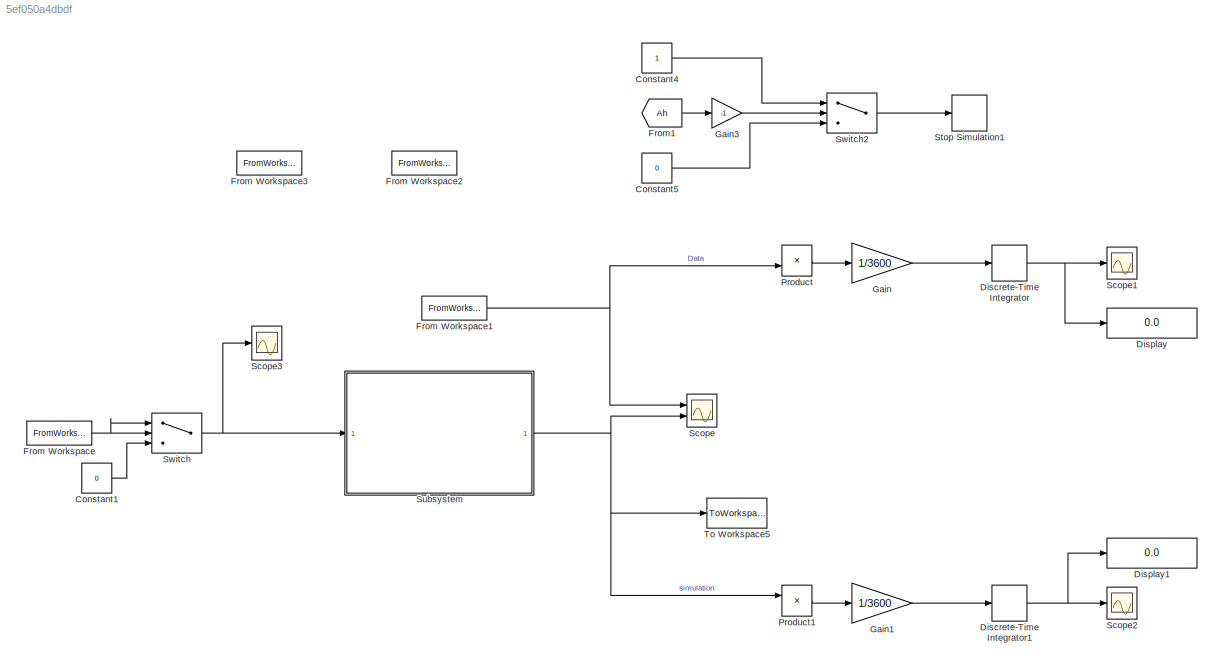
MODEL slx_5ef050a4dbdf
KIND model
CONFIG AbsTol = auto
CONFIG EnableMultiTasking = off
CONFIG FixedStep = 0.01
CONFIG MaxStep = auto
CONFIG MinStep = auto
CONFIG RelTol = 1e-3
CONFIG SampleTimeConstraint = Unconstrained
CONFIG Solver = FixedStepDiscrete
CONFIG SolverName = FixedStepDiscrete
CONFIG StartTime = 0.0
CONFIG StopTime = inf
BLOCK [Constant] Constant1
  SampleTime = -1
  Value = 0
BLOCK [Constant] Constant4
  SampleTime = -1
BLOCK [Constant] Constant5
  SampleTime = -1
  Value = 0
BLOCK [DiscreteIntegrator] Discrete-Time Integrator
  Commented = on
  ICPrevOutput = DiscIntNeverNeededParam
  ICPrevScaledInput = DiscIntNeverNeededParam
  InitialConditionSetting = Auto
  Ports = [1, 1]
  SampleTime = -1
BLOCK [DiscreteIntegrator] Discrete-Time Integrator1
  Commented = on
  ICPrevOutput = DiscIntNeverNeededParam
  ICPrevScaledInput = DiscIntNeverNeededParam
  InitialConditionSetting = Auto
  Ports = [1, 1]
  SampleTime = -1
BLOCK [Display] Display
  Commented = on
  Decimation = 1
  Ports = [1]
BLOCK [Display] Display1
  Commented = on
  Decimation = 1
  Ports = [1]
BLOCK [FromWorkspace] From Workspace
  SampleTime = 0.01
  VariableName = currentdata
  ZeroCross = on
BLOCK [FromWorkspace] From Workspace1
  Commented = on
  SampleTime = 0.001
  VariableName = voltagedata
  ZeroCross = on
BLOCK [FromWorkspace] From Workspace2
  Commented = on
  Interpolate = off
  OutputAfterFinalValue = Cyclic repetition
  SampleTime = 0.001
  VariableName = Vbat
BLOCK [FromWorkspace] From Workspace3
  Commented = on
  Interpolate = off
  OutputAfterFinalValue = Cyclic repetition
  SampleTime = 0.001
  VariableName = Ibat
BLOCK [From] From1
  GotoTag = Ah
  TagVisibility = global
BLOCK [Gain] Gain
  Commented = on
  Gain = 1/3600
  OutDataTypeStr = Inherit: Inherit via internal rule
  ParamDataTypeStr = Inherit: Inherit via internal rule
  SaturateOnIntegerOverflow = off
BLOCK [Gain] Gain1
  Commented = on
  Gain = 1/3600
  OutDataTypeStr = Inherit: Inherit via internal rule
  ParamDataTypeStr = Inherit: Inherit via internal rule
  SaturateOnIntegerOverflow = off
BLOCK [Gain] Gain3
  Gain = -1
  OutDataTypeStr = Inherit: Inherit via internal rule
  ParamDataTypeStr = Inherit: Inherit via internal rule
  SaturateOnIntegerOverflow = off
BLOCK [Product] Product
  Commented = on
  InputSameDT = off
  OutDataTypeStr = Inherit: Inherit via internal rule
  Ports = [2, 1]
  RndMeth = Floor
  SaturateOnIntegerOverflow = off
BLOCK [Product] Product1
  Commented = on
  InputSameDT = off
  OutDataTypeStr = Inherit: Inherit via internal rule
  Ports = [2, 1]
  RndMeth = Floor
  SaturateOnIntegerOverflow = off
BLOCK [Scope] Scope
  Floating = off
  NumInputPorts = 2
  Ports = [2]
  ScopeSpecificationString = Simulink.scopes.TimeScopeBlockCfg('CurrentConfiguration', extmgr.ConfigurationSet(extmgr.Configuration('Core','General UI',true),extmgr.Configuration('Core','Source UI',true),extmgr.Configuration('Sources','WiredSimulink',true),extmgr.Configuration('Visuals','Time Domain',true,'SerializedDisplays',{struct('MinYLimReal','-0.51358','MaxYLimReal','4.62226','YLabelReal','','MinYLimMag','0.00000','MaxY...<+1408ch>
BLOCK [Scope] Scope1
  Commented = on
  Floating = off
  NumInputPorts = 1
  Ports = [1]
  ScopeSpecificationString = Simulink.scopes.TimeScopeBlockCfg('CurrentConfiguration', extmgr.ConfigurationSet(extmgr.Configuration('Core','General UI',true),extmgr.Configuration('Core','Source UI',true),extmgr.Configuration('Sources','WiredSimulink',true,'DataLoggingVariableName','ScopeData1'),extmgr.Configuration('Visuals','Time Domain',true,'SerializedDisplays',{struct('MinYLimReal','26.58272','MaxYLimReal','26.76913','YLa...<+1462ch>
BLOCK [Scope] Scope2
  Commented = on
  Floating = off
  NumInputPorts = 1
  Ports = [1]
  ScopeSpecificationString = Simulink.scopes.TimeScopeBlockCfg('CurrentConfiguration', extmgr.ConfigurationSet(extmgr.Configuration('Core','General UI',true),extmgr.Configuration('Core','Source UI',true),extmgr.Configuration('Sources','WiredSimulink',true,'DataLoggingVariableName','ScopeData1'),extmgr.Configuration('Visuals','Time Domain',true,'SerializedDisplays',{struct('MinYLimReal','-3.34834','MaxYLimReal','30.13504','YLa...<+1461ch>
BLOCK [Scope] Scope3
  Floating = off
  NumInputPorts = 1
  Ports = [1]
  ScopeSpecificationString = Simulink.scopes.TimeScopeBlockCfg('CurrentConfiguration', extmgr.ConfigurationSet(extmgr.Configuration('Core','General UI',true),extmgr.Configuration('Core','Source UI',true),extmgr.Configuration('Sources','WiredSimulink',true,'DataLoggingVariableName','ScopeData1'),extmgr.Configuration('Visuals','Time Domain',true,'SerializedDisplays',{struct('MinYLimReal','-1.00000','MaxYLimReal','1.00000','YLab...<+1436ch>
BLOCK [Stop] Stop Simulation1
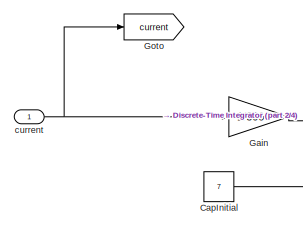
[diagram: Subsystem - part 1/4, top left region]
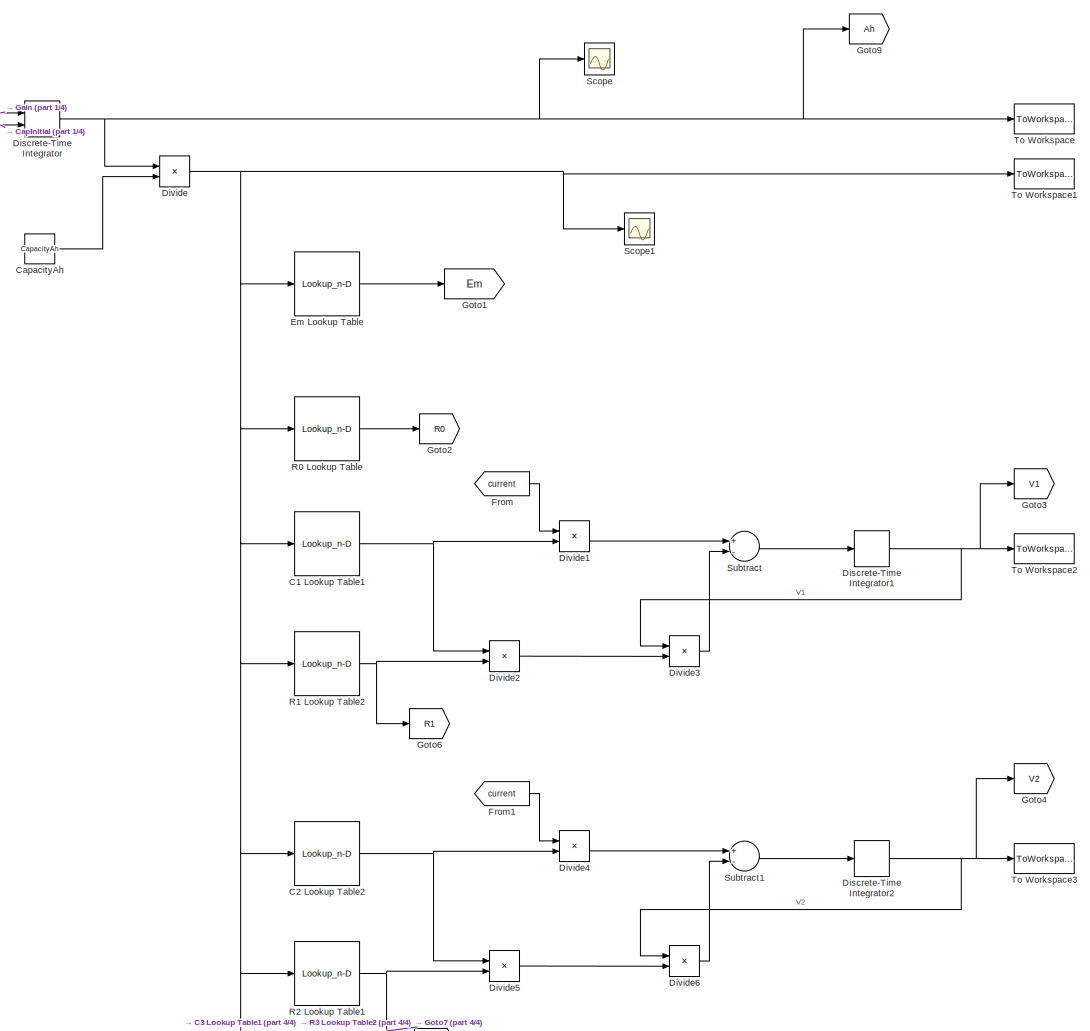
[diagram: Subsystem - part 2/4, middle left region]
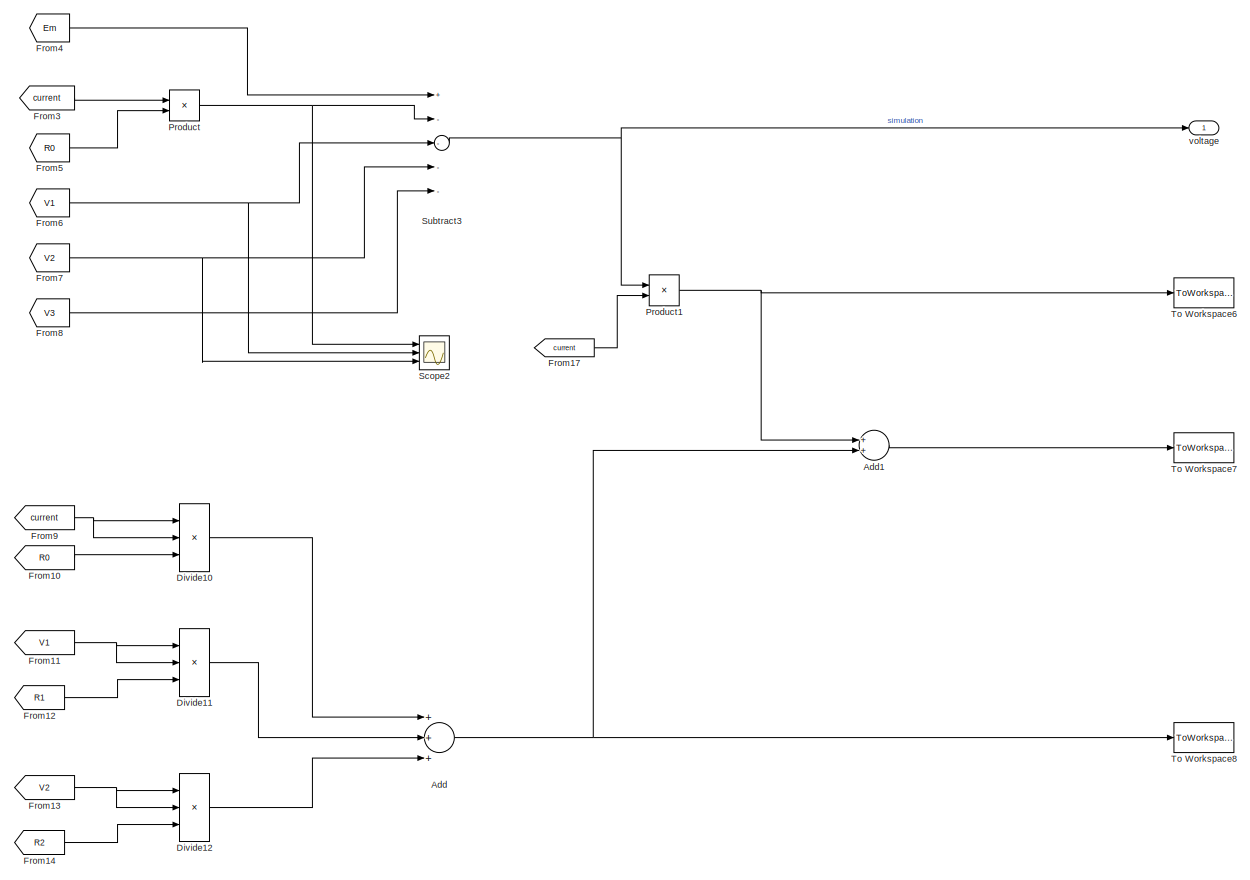
[diagram: Subsystem - part 3/4, middle right region]
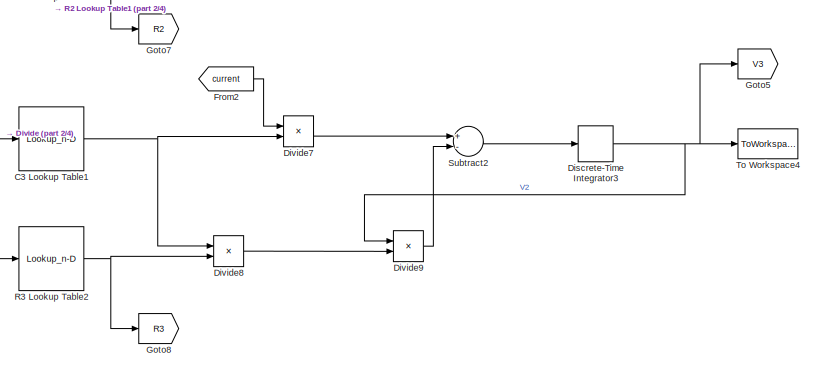
[diagram: Subsystem - part 4/4, bottom center region]
BLOCK [SubSystem] Subsystem
  Ports = [1, 1]
  RequestExecContextInheritance = off
BLOCK [Sum] Subsystem/Add
  InputSameDT = off
  Inputs = +++
  OutDataTypeStr = Inherit: Inherit via internal rule
  Ports = [3, 1]
  SaturateOnIntegerOverflow = off
BLOCK [Sum] Subsystem/Add1
  InputSameDT = off
  OutDataTypeStr = Inherit: Inherit via internal rule
  Ports = [2, 1]
  SaturateOnIntegerOverflow = off
BLOCK [Lookup_n-D] Subsystem/C1 Lookup Table1
  BreakpointsForDimension1 = SOC_LUT
  InternalRulePriority = Speed
  NumberOfTableDimensions = 1
  Ports = [1, 1]
  RndMeth = Simplest
  Table = C1Prime(1,:)
BLOCK [Lookup_n-D] Subsystem/C2 Lookup Table2
  BreakpointsForDimension1 = SOC_LUT
  InternalRulePriority = Speed
  NumberOfTableDimensions = 1
  Ports = [1, 1]
  RndMeth = Simplest
  Table = C2Prime(1,:)
BLOCK [Lookup_n-D] Subsystem/C3 Lookup Table1
  BreakpointsForDimension1 = SOC_LUT
  InternalRulePriority = Speed
  NumberOfTableDimensions = 1
  Ports = [1, 1]
  RndMeth = Simplest
  Table = C3Prime(1,:)
BLOCK [Constant] Subsystem/CapInitial
  SampleTime = -1
  Value = 7
BLOCK [Constant] Subsystem/CapacityAh
  SampleTime = -1
  Value = CapacityAh
BLOCK [DiscreteIntegrator] Subsystem/Discrete-Time Integrator
  ICPrevOutput = DiscIntNeverNeededParam
  ICPrevScaledInput = DiscIntNeverNeededParam
  InitialConditionSetting = Auto
  InitialConditionSource = external
  Ports = [2, 1]
  SampleTime = -1
BLOCK [DiscreteIntegrator] Subsystem/Discrete-Time Integrator1
  ICPrevOutput = DiscIntNeverNeededParam
  ICPrevScaledInput = DiscIntNeverNeededParam
  InitialConditionSetting = Auto
  Ports = [1, 1]
  SampleTime = -1
BLOCK [DiscreteIntegrator] Subsystem/Discrete-Time Integrator2
  ICPrevOutput = DiscIntNeverNeededParam
  ICPrevScaledInput = DiscIntNeverNeededParam
  InitialConditionSetting = Auto
  Ports = [1, 1]
  SampleTime = -1
BLOCK [DiscreteIntegrator] Subsystem/Discrete-Time Integrator3
  ICPrevOutput = DiscIntNeverNeededParam
  ICPrevScaledInput = DiscIntNeverNeededParam
  InitialConditionSetting = Auto
  Ports = [1, 1]
  SampleTime = -1
BLOCK [Product] Subsystem/Divide
  InputSameDT = off
  Inputs = */
  OutDataTypeStr = Inherit: Inherit via internal rule
  Ports = [2, 1]
  RndMeth = Floor
  SaturateOnIntegerOverflow = off
BLOCK [Product] Subsystem/Divide1
  InputSameDT = off
  Inputs = */
  OutDataTypeStr = Inherit: Inherit via internal rule
  Ports = [2, 1]
  RndMeth = Floor
  SaturateOnIntegerOverflow = off
BLOCK [Product] Subsystem/Divide10
  InputSameDT = off
  Inputs = ***
  OutDataTypeStr = Inherit: Inherit via internal rule
  Ports = [3, 1]
  RndMeth = Floor
  SaturateOnIntegerOverflow = off
BLOCK [Product] Subsystem/Divide11
  InputSameDT = off
  Inputs = **/
  OutDataTypeStr = Inherit: Inherit via internal rule
  Ports = [3, 1]
  RndMeth = Floor
  SaturateOnIntegerOverflow = off
BLOCK [Product] Subsystem/Divide12
  InputSameDT = off
  Inputs = **/
  OutDataTypeStr = Inherit: Inherit via internal rule
  Ports = [3, 1]
  RndMeth = Floor
  SaturateOnIntegerOverflow = off
BLOCK [Product] Subsystem/Divide2
  InputSameDT = off
  Inputs = **
  OutDataTypeStr = Inherit: Inherit via internal rule
  Ports = [2, 1]
  RndMeth = Floor
  SaturateOnIntegerOverflow = off
BLOCK [Product] Subsystem/Divide3
  InputSameDT = off
  Inputs = */
  OutDataTypeStr = Inherit: Inherit via internal rule
  Ports = [2, 1]
  RndMeth = Floor
  SaturateOnIntegerOverflow = off
BLOCK [Product] Subsystem/Divide4
  InputSameDT = off
  Inputs = */
  OutDataTypeStr = Inherit: Inherit via internal rule
  Ports = [2, 1]
  RndMeth = Floor
  SaturateOnIntegerOverflow = off
BLOCK [Product] Subsystem/Divide5
  InputSameDT = off
  Inputs = **
  OutDataTypeStr = Inherit: Inherit via internal rule
  Ports = [2, 1]
  RndMeth = Floor
  SaturateOnIntegerOverflow = off
BLOCK [Product] Subsystem/Divide6
  InputSameDT = off
  Inputs = */
  OutDataTypeStr = Inherit: Inherit via internal rule
  Ports = [2, 1]
  RndMeth = Floor
  SaturateOnIntegerOverflow = off
BLOCK [Product] Subsystem/Divide7
  InputSameDT = off
  Inputs = */
  OutDataTypeStr = Inherit: Inherit via internal rule
  Ports = [2, 1]
  RndMeth = Floor
  SaturateOnIntegerOverflow = off
BLOCK [Product] Subsystem/Divide8
  InputSameDT = off
  Inputs = **
  OutDataTypeStr = Inherit: Inherit via internal rule
  Ports = [2, 1]
  RndMeth = Floor
  SaturateOnIntegerOverflow = off
BLOCK [Product] Subsystem/Divide9
  InputSameDT = off
  Inputs = */
  OutDataTypeStr = Inherit: Inherit via internal rule
  Ports = [2, 1]
  RndMeth = Floor
  SaturateOnIntegerOverflow = off
BLOCK [Lookup_n-D] Subsystem/Em Lookup Table
  BreakpointsForDimension1 = SOC_LUT
  InternalRulePriority = Speed
  NumberOfTableDimensions = 1
  Ports = [1, 1]
  RndMeth = Simplest
  Table = Em
BLOCK [From] Subsystem/From
  GotoTag = current
BLOCK [From] Subsystem/From1
  GotoTag = current
BLOCK [From] Subsystem/From10
  GotoTag = R0
BLOCK [From] Subsystem/From11
  GotoTag = V1
BLOCK [From] Subsystem/From12
  GotoTag = R1
BLOCK [From] Subsystem/From13
  GotoTag = V2
BLOCK [From] Subsystem/From14
  GotoTag = R2
BLOCK [From] Subsystem/From17
  GotoTag = current
BLOCK [From] Subsystem/From2
  GotoTag = current
BLOCK [From] Subsystem/From3
  GotoTag = current
BLOCK [From] Subsystem/From4
  GotoTag = Em
BLOCK [From] Subsystem/From5
  GotoTag = R0
BLOCK [From] Subsystem/From6
  GotoTag = V1
BLOCK [From] Subsystem/From7
  GotoTag = V2
BLOCK [From] Subsystem/From8
  GotoTag = V3
BLOCK [From] Subsystem/From9
  GotoTag = current
BLOCK [Gain] Subsystem/Gain
  Gain = -1/3600
  OutDataTypeStr = Inherit: Inherit via internal rule
  ParamDataTypeStr = Inherit: Inherit via internal rule
  SaturateOnIntegerOverflow = off
BLOCK [Goto] Subsystem/Goto
  GotoTag = current
BLOCK [Goto] Subsystem/Goto1
  GotoTag = Em
BLOCK [Goto] Subsystem/Goto2
  GotoTag = R0
BLOCK [Goto] Subsystem/Goto3
  GotoTag = V1
BLOCK [Goto] Subsystem/Goto4
  GotoTag = V2
BLOCK [Goto] Subsystem/Goto5
  GotoTag = V3
BLOCK [Goto] Subsystem/Goto6
  GotoTag = R1
BLOCK [Goto] Subsystem/Goto7
  GotoTag = R2
BLOCK [Goto] Subsystem/Goto8
  GotoTag = R3
BLOCK [Goto] Subsystem/Goto9
  GotoTag = Ah
  TagVisibility = global
BLOCK [Product] Subsystem/Product
  InputSameDT = off
  OutDataTypeStr = Inherit: Inherit via internal rule
  Ports = [2, 1]
  RndMeth = Floor
  SaturateOnIntegerOverflow = off
BLOCK [Product] Subsystem/Product1
  InputSameDT = off
  OutDataTypeStr = Inherit: Inherit via internal rule
  Ports = [2, 1]
  RndMeth = Floor
  SaturateOnIntegerOverflow = off
BLOCK [Lookup_n-D] Subsystem/R0 Lookup Table
  BreakpointsForDimension1 = SOC_LUT
  InternalRulePriority = Speed
  NumberOfTableDimensions = 1
  Ports = [1, 1]
  RndMeth = Simplest
  Table = R0
BLOCK [Lookup_n-D] Subsystem/R1 Lookup Table2
  BreakpointsForDimension1 = SOC_LUT
  InternalRulePriority = Speed
  NumberOfTableDimensions = 1
  Ports = [1, 1]
  RndMeth = Simplest
  Table = Rx(1,:)
BLOCK [Lookup_n-D] Subsystem/R2 Lookup Table1
  BreakpointsForDimension1 = SOC_LUT
  InternalRulePriority = Speed
  NumberOfTableDimensions = 1
  Ports = [1, 1]
  RndMeth = Simplest
  Table = Rx(2,:)
BLOCK [Lookup_n-D] Subsystem/R3 Lookup Table2
  BreakpointsForDimension1 = SOC_LUT
  InternalRulePriority = Speed
  NumberOfTableDimensions = 1
  Ports = [1, 1]
  RndMeth = Simplest
  Table = Rx(3,:)
BLOCK [Scope] Subsystem/Scope
  Floating = off
  NumInputPorts = 1
  Ports = [1]
  ScopeSpecificationString = Simulink.scopes.TimeScopeBlockCfg('CurrentConfiguration', extmgr.ConfigurationSet(extmgr.Configuration('Core','General UI',true),extmgr.Configuration('Core','Source UI',true),extmgr.Configuration('Sources','WiredSimulink',true,'DataLoggingVariableName','ScopeData1'),extmgr.Configuration('Visuals','Time Domain',true,'SerializedDisplays',{struct('MinYLimReal','6.79606','MaxYLimReal','7.02266','YLabe...<+1406ch>
BLOCK [Scope] Subsystem/Scope1
  Floating = off
  NumInputPorts = 1
  Ports = [1]
  ScopeSpecificationString = Simulink.scopes.TimeScopeBlockCfg('CurrentConfiguration', extmgr.ConfigurationSet(extmgr.Configuration('Core','General UI',true),extmgr.Configuration('Core','Source UI',true),extmgr.Configuration('Sources','WiredSimulink',true,'DataLoggingVariableName','ScopeData2'),extmgr.Configuration('Visuals','Time Domain',true,'SerializedDisplays',{struct('MinYLimReal','0.56933','MaxYLimReal','0.84289','YLabe...<+1436ch>
BLOCK [Scope] Subsystem/Scope2
  Floating = off
  NumInputPorts = 3
  Ports = [3]
  ScopeSpecificationString = Simulink.scopes.TimeScopeBlockCfg('CurrentConfiguration', extmgr.ConfigurationSet(extmgr.Configuration('Core','General UI',true),extmgr.Configuration('Core','Source UI',true),extmgr.Configuration('Sources','WiredSimulink',true,'DataLoggingVariableName','ScopeData1'),extmgr.Configuration('Visuals','Time Domain',true,'SerializedDisplays',{struct('MinYLimReal','-0.01023','MaxYLimReal','0.09145','YLab...<+1519ch>
BLOCK [Sum] Subsystem/Subtract
  InputSameDT = off
  Inputs = +-
  OutDataTypeStr = Inherit: Inherit via internal rule
  Ports = [2, 1]
  SaturateOnIntegerOverflow = off
BLOCK [Sum] Subsystem/Subtract1
  InputSameDT = off
  Inputs = +-
  OutDataTypeStr = Inherit: Inherit via internal rule
  Ports = [2, 1]
  SaturateOnIntegerOverflow = off
BLOCK [Sum] Subsystem/Subtract2
  InputSameDT = off
  Inputs = +-
  OutDataTypeStr = Inherit: Inherit via internal rule
  Ports = [2, 1]
  SaturateOnIntegerOverflow = off
BLOCK [Sum] Subsystem/Subtract3
  InputSameDT = off
  Inputs = +----
  OutDataTypeStr = Inherit: Inherit via internal rule
  Ports = [5, 1]
  SaturateOnIntegerOverflow = off
BLOCK [ToWorkspace] Subsystem/To Workspace
  FixptAsFi = on
  MaxDataPoints = inf
  Ports = [1]
  SampleTime = -1
  VariableName = Ah
BLOCK [ToWorkspace] Subsystem/To Workspace1
  FixptAsFi = on
  MaxDataPoints = inf
  Ports = [1]
  SampleTime = -1
  VariableName = SOC
BLOCK [ToWorkspace] Subsystem/To Workspace2
  FixptAsFi = on
  MaxDataPoints = inf
  Ports = [1]
  SampleTime = -1
  VariableName = V1
BLOCK [ToWorkspace] Subsystem/To Workspace3
  FixptAsFi = on
  MaxDataPoints = inf
  Ports = [1]
  SampleTime = -1
  VariableName = V2
BLOCK [ToWorkspace] Subsystem/To Workspace4
  FixptAsFi = on
  MaxDataPoints = inf
  Ports = [1]
  SampleTime = -1
  VariableName = V
BLOCK [ToWorkspace] Subsystem/To Workspace6
  FixptAsFi = on
  MaxDataPoints = inf
  Ports = [1]
  SampleTime = -1
  VariableName = PwrLoad
BLOCK [ToWorkspace] Subsystem/To Workspace7
  FixptAsFi = on
  MaxDataPoints = inf
  Ports = [1]
  SampleTime = -1
  VariableName = PwrStored
BLOCK [ToWorkspace] Subsystem/To Workspace8
  FixptAsFi = on
  MaxDataPoints = inf
  Ports = [1]
  SampleTime = -1
  VariableName = Pwrloss
BLOCK [Inport] Subsystem/current
  IconDisplay = Port number
BLOCK [Outport] Subsystem/voltage
  IconDisplay = Port number
BLOCK [Switch] Switch
  Criteria = u2 > Threshold
  InputSameDT = off
  SaturateOnIntegerOverflow = off
  Threshold = 0.5
BLOCK [Switch] Switch2
  Criteria = u2 > Threshold
  InputSameDT = off
  SaturateOnIntegerOverflow = off
BLOCK [ToWorkspace] To Workspace5
  Commented = on
  FixptAsFi = on
  MaxDataPoints = inf
  Ports = [1]
  SampleTime = -1
  VariableName = BattVolt
LINE Constant1:1 -> Switch:3
LINE Constant4:1 -> Switch2:1
LINE Constant5:1 -> Switch2:3
NET Discrete-Time Integrator1:1 -> Display1:1, Scope2:1
NET Discrete-Time Integrator:1 -> Display:1, Scope1:1
NET From Workspace1:1 -> Product:2, Scope:1
NET From Workspace:1 -> Switch:1, Switch:2
LINE From1:1 -> Gain3:1
LINE Gain1:1 -> Discrete-Time Integrator1:1
LINE Gain3:1 -> Switch2:2
LINE Gain:1 -> Discrete-Time Integrator:1
LINE Product1:1 -> Gain1:1
LINE Product:1 -> Gain:1
LINE Subsystem/Add1:1 -> Subsystem/To Workspace7:1
NET Subsystem/Add:1 -> Subsystem/Add1:2, Subsystem/To Workspace8:1
NET Subsystem/C1 Lookup Table1:1 -> Subsystem/Divide1:2, Subsystem/Divide2:1
NET Subsystem/C2 Lookup Table2:1 -> Subsystem/Divide4:2, Subsystem/Divide5:1
NET Subsystem/C3 Lookup Table1:1 -> Subsystem/Divide7:2, Subsystem/Divide8:1
LINE Subsystem/CapInitial:1 -> Subsystem/Discrete-Time Integrator:2
LINE Subsystem/CapacityAh:1 -> Subsystem/Divide:2
NET Subsystem/Discrete-Time Integrator1:1 -> Subsystem/Divide3:1, Subsystem/Goto3:1, Subsystem/To Workspace2:1
NET Subsystem/Discrete-Time Integrator2:1 -> Subsystem/Divide6:1, Subsystem/Goto4:1, Subsystem/To Workspace3:1
NET Subsystem/Discrete-Time Integrator3:1 -> Subsystem/Divide9:1, Subsystem/Goto5:1, Subsystem/To Workspace4:1
NET Subsystem/Discrete-Time Integrator:1 -> Subsystem/Divide:1, Subsystem/Goto9:1, Subsystem/Scope:1, Subsystem/To Workspace:1
LINE Subsystem/Divide10:1 -> Subsystem/Add:1
LINE Subsystem/Divide11:1 -> Subsystem/Add:2
LINE Subsystem/Divide12:1 -> Subsystem/Add:3
LINE Subsystem/Divide1:1 -> Subsystem/Subtract:1
LINE Subsystem/Divide2:1 -> Subsystem/Divide3:2
LINE Subsystem/Divide3:1 -> Subsystem/Subtract:2
LINE Subsystem/Divide4:1 -> Subsystem/Subtract1:1
LINE Subsystem/Divide5:1 -> Subsystem/Divide6:2
LINE Subsystem/Divide6:1 -> Subsystem/Subtract1:2
LINE Subsystem/Divide7:1 -> Subsystem/Subtract2:1
LINE Subsystem/Divide8:1 -> Subsystem/Divide9:2
LINE Subsystem/Divide9:1 -> Subsystem/Subtract2:2
NET Subsystem/Divide:1 -> Subsystem/C1 Lookup Table1:1, Subsystem/C2 Lookup Table2:1, Subsystem/C3 Lookup Table1:1, Subsystem/Em Lookup Table:1, Subsystem/R0 Lookup Table:1, Subsystem/R1 Lookup Table2:1, Subsystem/R2 Lookup Table1:1, Subsystem/R3 Lookup Table2:1, Subsystem/Scope1:1, Subsystem/To Workspace1:1
LINE Subsystem/Em Lookup Table:1 -> Subsystem/Goto1:1
LINE Subsystem/From10:1 -> Subsystem/Divide10:3
NET Subsystem/From11:1 -> Subsystem/Divide11:1, Subsystem/Divide11:2
LINE Subsystem/From12:1 -> Subsystem/Divide11:3
NET Subsystem/From13:1 -> Subsystem/Divide12:1, Subsystem/Divide12:2
LINE Subsystem/From14:1 -> Subsystem/Divide12:3
LINE Subsystem/From17:1 -> Subsystem/Product1:2
LINE Subsystem/From1:1 -> Subsystem/Divide4:1
LINE Subsystem/From2:1 -> Subsystem/Divide7:1
LINE Subsystem/From3:1 -> Subsystem/Product:1
LINE Subsystem/From4:1 -> Subsystem/Subtract3:1
LINE Subsystem/From5:1 -> Subsystem/Product:2
NET Subsystem/From6:1 -> Subsystem/Scope2:2, Subsystem/Subtract3:3
NET Subsystem/From7:1 -> Subsystem/Scope2:3, Subsystem/Subtract3:4
LINE Subsystem/From8:1 -> Subsystem/Subtract3:5
NET Subsystem/From9:1 -> Subsystem/Divide10:1, Subsystem/Divide10:2
LINE Subsystem/From:1 -> Subsystem/Divide1:1
LINE Subsystem/Gain:1 -> Subsystem/Discrete-Time Integrator:1
NET Subsystem/Product1:1 -> Subsystem/Add1:1, Subsystem/To Workspace6:1
NET Subsystem/Product:1 -> Subsystem/Scope2:1, Subsystem/Subtract3:2
LINE Subsystem/R0 Lookup Table:1 -> Subsystem/Goto2:1
NET Subsystem/R1 Lookup Table2:1 -> Subsystem/Divide2:2, Subsystem/Goto6:1
NET Subsystem/R2 Lookup Table1:1 -> Subsystem/Divide5:2, Subsystem/Goto7:1
NET Subsystem/R3 Lookup Table2:1 -> Subsystem/Divide8:2, Subsystem/Goto8:1
LINE Subsystem/Subtract1:1 -> Subsystem/Discrete-Time Integrator2:1
LINE Subsystem/Subtract2:1 -> Subsystem/Discrete-Time Integrator3:1
NET Subsystem/Subtract3:1 -> Subsystem/Product1:1, Subsystem/voltage:1
LINE Subsystem/Subtract:1 -> Subsystem/Discrete-Time Integrator1:1
NET Subsystem/current:1 -> Subsystem/Gain:1, Subsystem/Goto:1
NET Subsystem:1 -> Product1:1, Scope:2, To Workspace5:1
LINE Switch2:1 -> Stop Simulation1:1
NET Switch:1 -> Scope3:1, Subsystem:1
note: NET lines group one-source signal fan-out (src -> all destinations, sorted); 1:1 wires keep LINE
